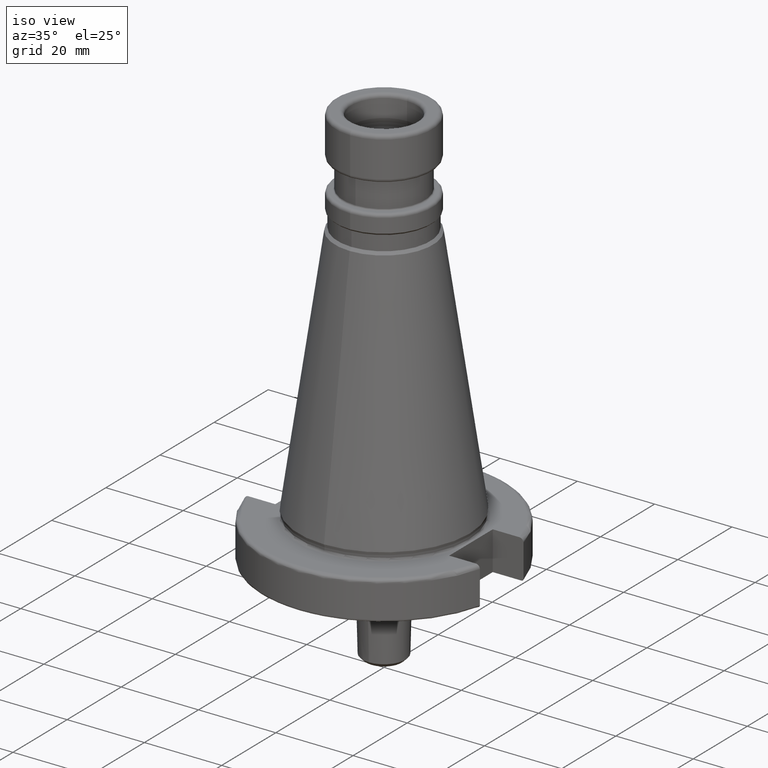
[diagram: clean part render]
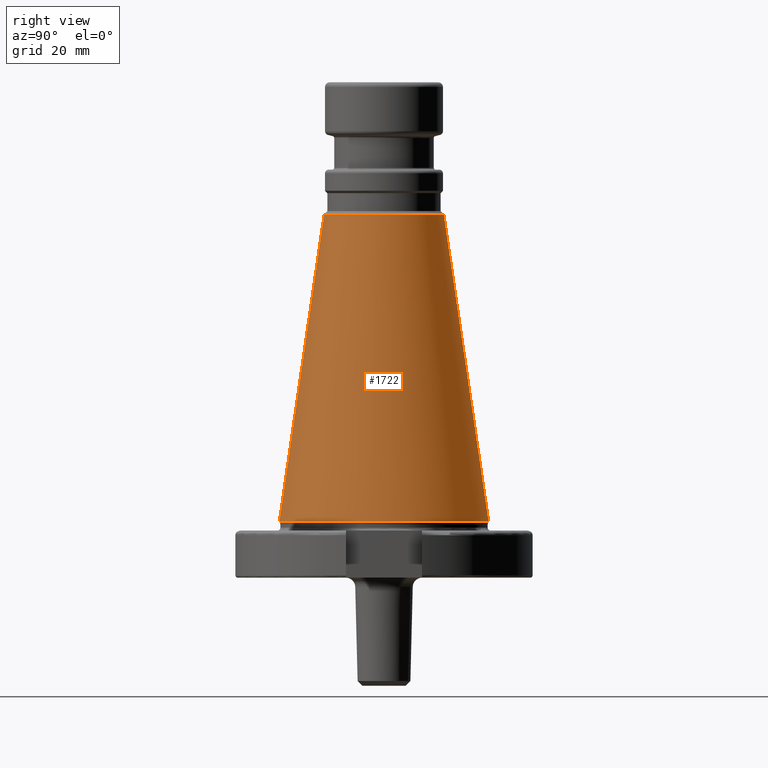
[diagram: tour spotlight — one face highlighted and labeled with its STEP entity id]
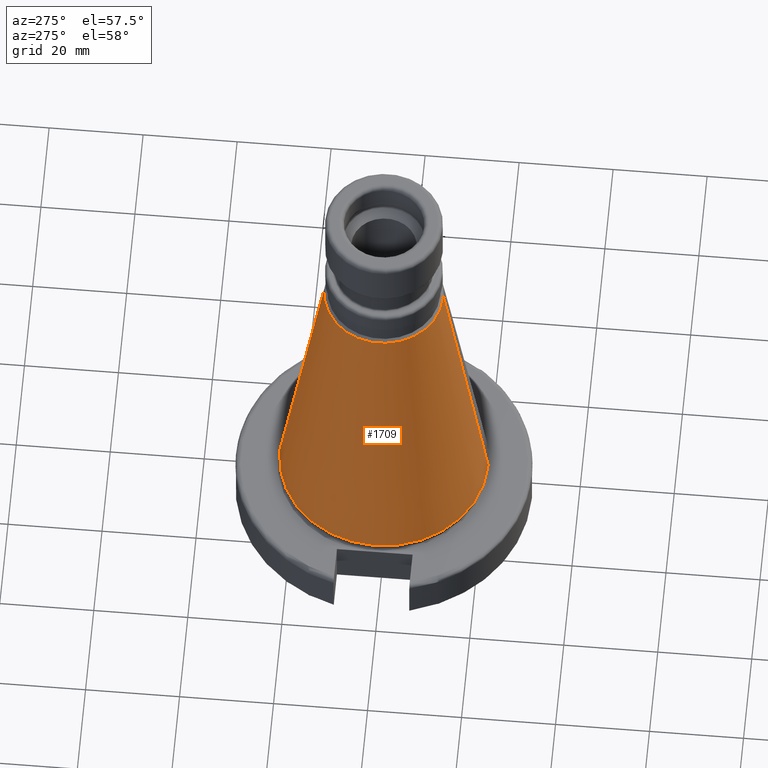
[diagram: tour spotlight — one face highlighted and labeled with its STEP entity id]
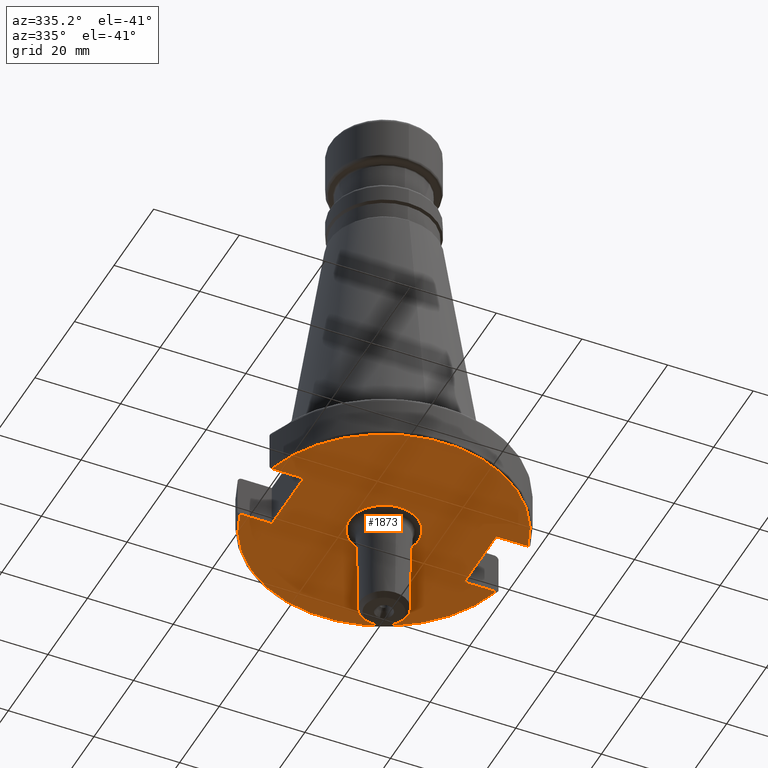
[diagram: tour spotlight — one face highlighted and labeled with its STEP entity id]
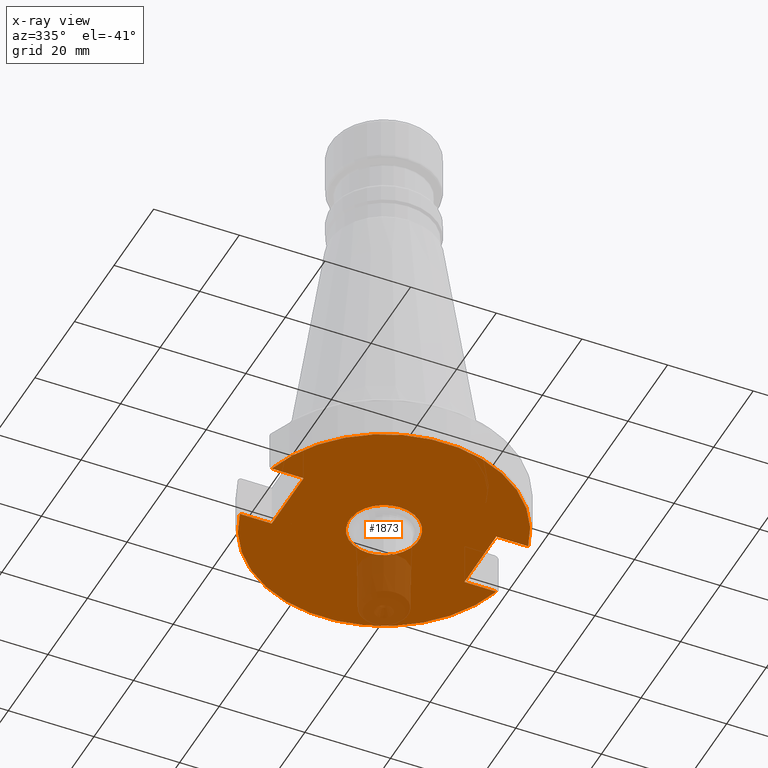
[diagram: x-ray of the same camera — body ghosted, this tour face saturated]
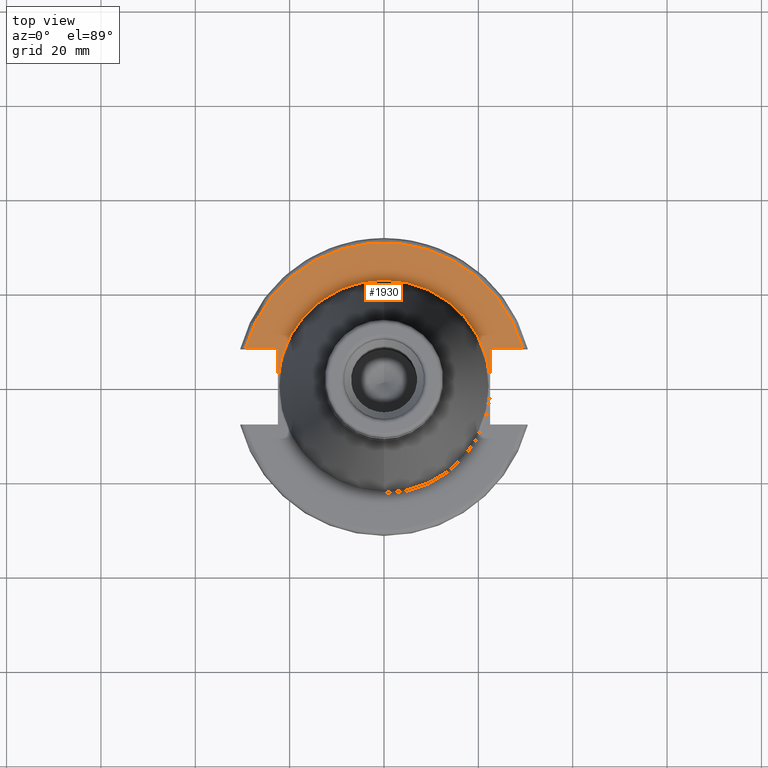
[diagram: tour spotlight — one face highlighted and labeled with its STEP entity id]
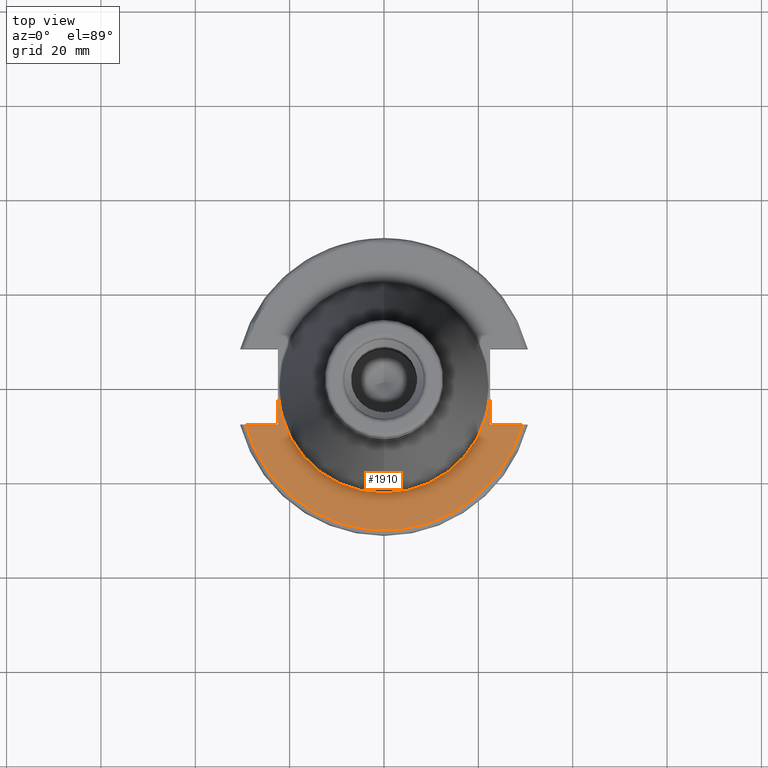
[diagram: tour spotlight — one face highlighted and labeled with its STEP entity id]
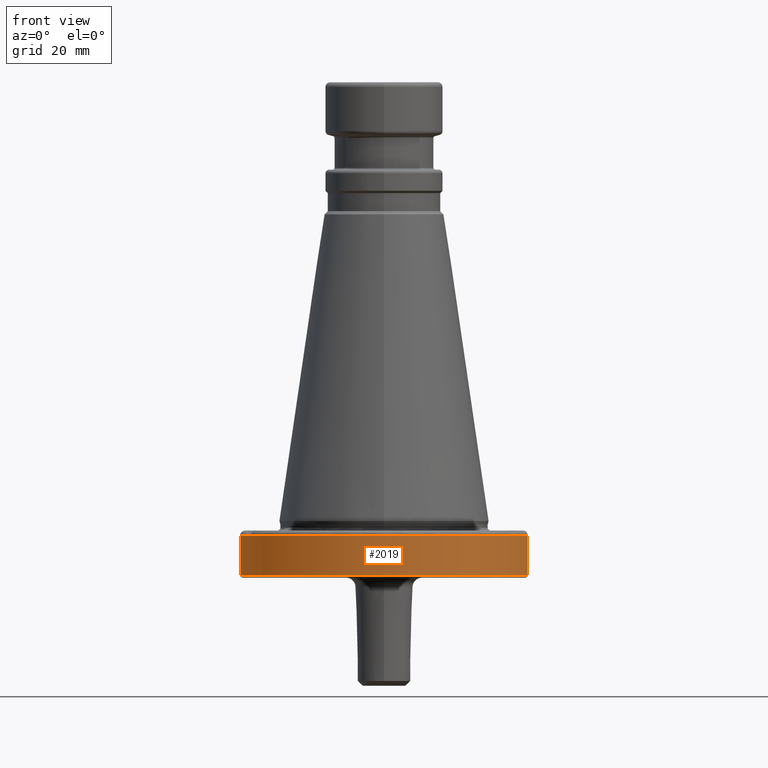
[diagram: tour spotlight — one face highlighted and labeled with its STEP entity id]
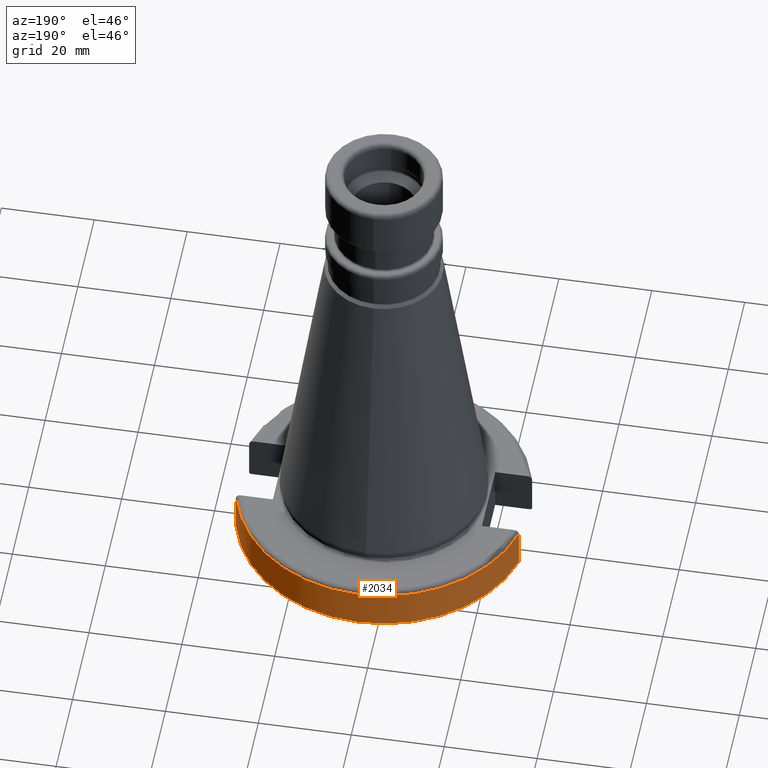
[diagram: tour spotlight — one face highlighted and labeled with its STEP entity id]
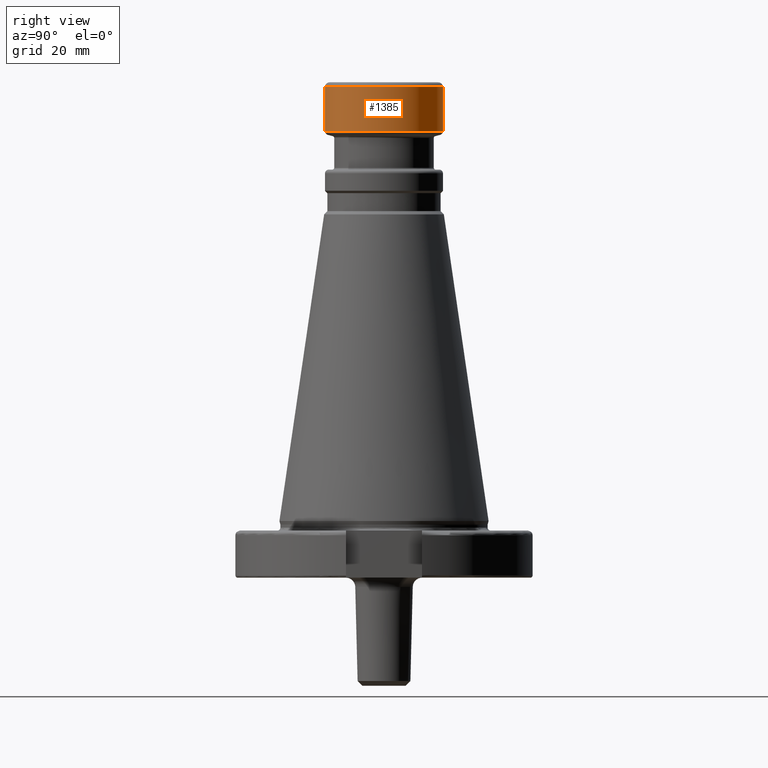
[diagram: tour spotlight — one face highlighted and labeled with its STEP entity id]
A machine part: a face-by-face anatomy tour. The part has 82 B-rep faces; the first image is the clean iso view, then the 8 largest visible faces are spotlighted one at a time (largest first), each with its STEP entity span.

Face 1 — right view, entity #1722. In plain terms, the highlighted conical surface has half-angle 8.297 deg.
Definition (entity closure, byte-faithful):
#397=CARTESIAN_POINT('',(0,0,77));
#398=DIRECTION('',(0,0,-1));
#399=DIRECTION('',(0,1,0));
#400=AXIS2_PLACEMENT_3D('',#397,#398,#399);
#415=DIRECTION('',(0,-0.1443061164152,0.9895330943254));
#416=VECTOR('',#415,65.68754534108);
#417=CARTESIAN_POINT('',(0,22.16666698729,12));
#418=LINE('',#417,#416);
#419=DIRECTION('',(0,0.1443061164152,0.9895330943254));
#420=VECTOR('',#419,65.68754534108);
#421=CARTESIAN_POINT('',(0,-22.16666698729,12));
#422=LINE('',#421,#420);
#428=CARTESIAN_POINT('',(0,0,12));
#429=DIRECTION('',(0,0,-1));
#430=DIRECTION('',(0,1,0));
#431=AXIS2_PLACEMENT_3D('',#428,#429,#430);
#889=CARTESIAN_POINT('',(0,22.16666698729,12));
#890=VERTEX_POINT('',#889);
#891=CARTESIAN_POINT('',(0,12.68755242227,77));
#892=VERTEX_POINT('',#891);
#937=CARTESIAN_POINT('',(0,-22.16666698729,12));
#938=VERTEX_POINT('',#937);
#939=CARTESIAN_POINT('',(0,-12.68755242227,77));
#940=VERTEX_POINT('',#939);
#1710=CARTESIAN_POINT('',(0,0,44.5));
#1711=DIRECTION('',(0,0,-1));
#1712=DIRECTION('',(0,-1,0));
#1713=AXIS2_PLACEMENT_3D('',#1710,#1711,#1712);
#1714=CONICAL_SURFACE('',#1713,17.42710970478,8.2971);
#1715=ORIENTED_EDGE('',*,*,#1700,.F.);
#1717=ORIENTED_EDGE('',*,*,#1716,.T.);
#1718=ORIENTED_EDGE('',*,*,#1703,.T.);
#1719=ORIENTED_EDGE('',*,*,#1674,.F.);
#1720=EDGE_LOOP('',(#1715,#1717,#1718,#1719));
#1721=FACE_OUTER_BOUND('',#1720,.F.);
#1722=ADVANCED_FACE('',(#1721),#1714,.T.);
#401=CIRCLE('',#400,12.68755242227);
#432=CIRCLE('',#431,22.16666698729);
#1674=EDGE_CURVE('',#892,#940,#401,.T.);
#1700=EDGE_CURVE('',#890,#892,#418,.T.);
#1703=EDGE_CURVE('',#938,#940,#422,.T.);
#1716=EDGE_CURVE('',#890,#938,#432,.T.);

Face 2 — auxiliary view, entity #1709. In plain terms, the highlighted conical surface has half-angle 8.297 deg.
Definition (entity closure, byte-faithful):
#410=CARTESIAN_POINT('',(0,0,77));
#411=DIRECTION('',(0,0,1));
#412=DIRECTION('',(0,1,0));
#413=AXIS2_PLACEMENT_3D('',#410,#411,#412);
#415=DIRECTION('',(0,-0.1443061164152,0.9895330943254));
#416=VECTOR('',#415,65.68754534108);
#417=CARTESIAN_POINT('',(0,22.16666698729,12));
#418=LINE('',#417,#416);
#419=DIRECTION('',(0,0.1443061164152,0.9895330943254));
#420=VECTOR('',#419,65.68754534108);
#421=CARTESIAN_POINT('',(0,-22.16666698729,12));
#422=LINE('',#421,#420);
#423=CARTESIAN_POINT('',(0,0,12));
#424=DIRECTION('',(0,0,1));
#425=DIRECTION('',(0,1,0));
#426=AXIS2_PLACEMENT_3D('',#423,#424,#425);
#889=CARTESIAN_POINT('',(0,22.16666698729,12));
#890=VERTEX_POINT('',#889);
#891=CARTESIAN_POINT('',(0,12.68755242227,77));
#892=VERTEX_POINT('',#891);
#937=CARTESIAN_POINT('',(0,-22.16666698729,12));
#938=VERTEX_POINT('',#937);
#939=CARTESIAN_POINT('',(0,-12.68755242227,77));
#940=VERTEX_POINT('',#939);
#1695=CARTESIAN_POINT('',(0,0,44.5));
#1696=DIRECTION('',(0,0,-1));
#1697=DIRECTION('',(0,-1,0));
#1698=AXIS2_PLACEMENT_3D('',#1695,#1696,#1697);
#1699=CONICAL_SURFACE('',#1698,17.42710970478,8.2971);
#1701=ORIENTED_EDGE('',*,*,#1700,.T.);
#1702=ORIENTED_EDGE('',*,*,#1690,.T.);
#1704=ORIENTED_EDGE('',*,*,#1703,.F.);
#1706=ORIENTED_EDGE('',*,*,#1705,.F.);
#1707=EDGE_LOOP('',(#1701,#1702,#1704,#1706));
#1708=FACE_OUTER_BOUND('',#1707,.F.);
#1709=ADVANCED_FACE('',(#1708),#1699,.T.);
#414=CIRCLE('',#413,12.68755242227);
#427=CIRCLE('',#426,22.16666698729);
#1690=EDGE_CURVE('',#892,#940,#414,.T.);
#1700=EDGE_CURVE('',#890,#892,#418,.T.);
#1703=EDGE_CURVE('',#938,#940,#422,.T.);
#1705=EDGE_CURVE('',#890,#938,#427,.T.);

Face 3 — auxiliary view, entity #1873. An x-ray twin of the same camera follows (body ghosted, this face saturated) — the face is partly hidden behind the body. In plain terms, the highlighted planar face has unit normal (0, 0, -1).
Definition (entity closure, byte-faithful):
#522=DIRECTION('',(1,0,0));
#523=VECTOR('',#522,7.436557918371);
#524=CARTESIAN_POINT('',(-29.93655791837,-8.05,0));
#525=LINE('',#524,#523);
#526=DIRECTION('',(-1,0,0));
#527=VECTOR('',#526,7.436557918371);
#528=CARTESIAN_POINT('',(29.93655791837,-8.05,0));
#529=LINE('',#528,#527);
#530=DIRECTION('',(0,-1,0));
#531=VECTOR('',#530,16.1);
#532=CARTESIAN_POINT('',(22.5,8.05,0));
#533=LINE('',#532,#531);
#534=DIRECTION('',(-1,0,0));
#535=VECTOR('',#534,7.436557918371);
#536=CARTESIAN_POINT('',(29.93655791837,8.05,0));
#537=LINE('',#536,#535);
#538=DIRECTION('',(1,0,0));
#539=VECTOR('',#538,7.436557918371);
#540=CARTESIAN_POINT('',(-29.93655791837,8.05,0));
#541=LINE('',#540,#539);
#542=DIRECTION('',(0,1,0));
#543=VECTOR('',#542,16.1);
#544=CARTESIAN_POINT('',(-22.5,-8.05,0));
#545=LINE('',#544,#543);
#546=CARTESIAN_POINT('',(0,0,0));
#547=DIRECTION('',(0,0,-1));
#548=DIRECTION('',(0,1,0));
#549=AXIS2_PLACEMENT_3D('',#546,#547,#548);
#551=CARTESIAN_POINT('',(0,0,0));
#552=DIRECTION('',(0,0,-1));
#553=DIRECTION('',(0,-1,0));
#554=AXIS2_PLACEMENT_3D('',#551,#552,#553);
#615=CARTESIAN_POINT('',(0,0,0));
#616=DIRECTION('',(0,0,-1));
#617=DIRECTION('',(0.9656954167217,-0.2596774193548,0));
#618=AXIS2_PLACEMENT_3D('',#615,#616,#617);
#663=CARTESIAN_POINT('',(0,0,0));
#664=DIRECTION('',(0,0,-1));
#665=DIRECTION('',(-0.9656954167217,0.2596774193548,0));
#666=AXIS2_PLACEMENT_3D('',#663,#664,#665);
#983=CARTESIAN_POINT('',(-29.93655791837,-8.05,0));
#984=CARTESIAN_POINT('',(-22.5,-8.05,0));
#985=VERTEX_POINT('',#983);
#986=VERTEX_POINT('',#984);
#987=CARTESIAN_POINT('',(-22.5,8.05,0));
#988=VERTEX_POINT('',#987);
#989=CARTESIAN_POINT('',(-29.93655791837,8.05,0));
#990=VERTEX_POINT('',#989);
#991=CARTESIAN_POINT('',(22.5,8.05,0));
#992=CARTESIAN_POINT('',(22.5,-8.05,0));
#993=VERTEX_POINT('',#991);
#994=VERTEX_POINT('',#992);
#995=CARTESIAN_POINT('',(29.93655791837,-8.05,0));
#996=VERTEX_POINT('',#995);
#997=CARTESIAN_POINT('',(29.93655791837,8.05,0));
#998=VERTEX_POINT('',#997);
#1073=CARTESIAN_POINT('',(0,8.092975443382,0));
#1074=CARTESIAN_POINT('',(0,-8.092975443382,0));
#1075=VERTEX_POINT('',#1073);
#1076=VERTEX_POINT('',#1074);
#1845=CARTESIAN_POINT('',(0,0,0));
#1846=DIRECTION('',(0,0,-1));
#1847=DIRECTION('',(0,-1,0));
#1848=AXIS2_PLACEMENT_3D('',#1845,#1846,#1847);
#1849=PLANE('',#1848);
#1851=ORIENTED_EDGE('',*,*,#1850,.F.);
#1853=ORIENTED_EDGE('',*,*,#1852,.F.);
#1855=ORIENTED_EDGE('',*,*,#1854,.T.);
#1857=ORIENTED_EDGE('',*,*,#1856,.F.);
#1859=ORIENTED_EDGE('',*,*,#1858,.F.);
#1861=ORIENTED_EDGE('',*,*,#1860,.F.);
#1863=ORIENTED_EDGE('',*,*,#1862,.T.);
#1864=ORIENTED_EDGE('',*,*,#1831,.F.);
#1865=EDGE_LOOP('',(#1851,#1853,#1855,#1857,#1859,#1861,#1863,#1864));
#1866=FACE_OUTER_BOUND('',#1865,.F.);
#1868=ORIENTED_EDGE('',*,*,#1867,.T.);
#1870=ORIENTED_EDGE('',*,*,#1869,.T.);
#1871=EDGE_LOOP('',(#1868,#1870));
#1872=FACE_BOUND('',#1871,.F.);
#1873=ADVANCED_FACE('',(#1866,#1872),#1849,.T.);
#550=CIRCLE('',#549,8.092975443382);
#555=CIRCLE('',#554,8.092975443382);
#619=CIRCLE('',#618,31);
#667=CIRCLE('',#666,31);
#1831=EDGE_CURVE('',#986,#988,#545,.T.);
#1850=EDGE_CURVE('',#985,#986,#525,.T.);
#1852=EDGE_CURVE('',#996,#985,#619,.T.);
#1854=EDGE_CURVE('',#996,#994,#529,.T.);
#1856=EDGE_CURVE('',#993,#994,#533,.T.);
#1858=EDGE_CURVE('',#998,#993,#537,.T.);
#1860=EDGE_CURVE('',#990,#998,#667,.T.);
#1862=EDGE_CURVE('',#990,#988,#541,.T.);
#1867=EDGE_CURVE('',#1075,#1076,#550,.T.);
#1869=EDGE_CURVE('',#1076,#1075,#555,.T.);

Face 4 — top view, entity #1930. In plain terms, the highlighted planar face has unit normal (0, 0, -1).
Definition (entity closure, byte-faithful):
#498=CARTESIAN_POINT('',(0,0,10));
#499=DIRECTION('',(0,0,1));
#500=DIRECTION('',(0,1,0));
#501=AXIS2_PLACEMENT_3D('',#498,#499,#500);
#572=DIRECTION('',(0,1,0));
#573=VECTOR('',#572,6.316662492374);
#574=CARTESIAN_POINT('',(-22.5,1.733337507626,10));
#575=LINE('',#574,#573);
#576=DIRECTION('',(1,0,0));
#577=VECTOR('',#576,6.918489084248);
#578=CARTESIAN_POINT('',(-29.41848908425,8.05,10));
#579=LINE('',#578,#577);
#580=DIRECTION('',(-1,0,0));
#581=VECTOR('',#580,6.918489084248);
#582=CARTESIAN_POINT('',(29.41848908425,8.05,10));
#583=LINE('',#582,#581);
#584=DIRECTION('',(0,-1,0));
#585=VECTOR('',#584,6.316662492374);
#586=CARTESIAN_POINT('',(22.5,8.05,10));
#587=LINE('',#586,#585);
#602=CARTESIAN_POINT('',(0,0,10));
#603=DIRECTION('',(0,0,-1));
#604=DIRECTION('',(0,1,0));
#605=AXIS2_PLACEMENT_3D('',#602,#603,#604);
#729=CARTESIAN_POINT('',(0,0,10));
#730=DIRECTION('',(0,0,1));
#731=DIRECTION('',(0.9645406257130,0.2639344262295,0));
#732=AXIS2_PLACEMENT_3D('',#729,#730,#731);
#881=CARTESIAN_POINT('',(0,22.56666698729,10));
#883=VERTEX_POINT('',#881);
#1013=CARTESIAN_POINT('',(-22.5,1.733337507626,10));
#1014=CARTESIAN_POINT('',(-22.5,8.05,10));
#1015=VERTEX_POINT('',#1013);
#1016=VERTEX_POINT('',#1014);
#1017=CARTESIAN_POINT('',(-29.41848908425,8.05,10));
#1018=VERTEX_POINT('',#1017);
#1019=CARTESIAN_POINT('',(22.5,8.05,10));
#1020=CARTESIAN_POINT('',(22.5,1.733337507626,10));
#1021=VERTEX_POINT('',#1019);
#1022=VERTEX_POINT('',#1020);
#1029=CARTESIAN_POINT('',(29.41848908425,8.05,10));
#1030=VERTEX_POINT('',#1029);
#1911=CARTESIAN_POINT('',(0,0,10));
#1912=DIRECTION('',(0,0,-1));
#1913=DIRECTION('',(0,-1,0));
#1914=AXIS2_PLACEMENT_3D('',#1911,#1912,#1913);
#1915=PLANE('',#1914);
#1916=ORIENTED_EDGE('',*,*,#1835,.T.);
#1918=ORIENTED_EDGE('',*,*,#1917,.F.);
#1920=ORIENTED_EDGE('',*,*,#1919,.F.);
#1922=ORIENTED_EDGE('',*,*,#1921,.T.);
#1924=ORIENTED_EDGE('',*,*,#1923,.T.);
#1926=ORIENTED_EDGE('',*,*,#1925,.F.);
#1927=ORIENTED_EDGE('',*,*,#1814,.T.);
#1928=EDGE_LOOP('',(#1916,#1918,#1920,#1922,#1924,#1926,#1927));
#1929=FACE_OUTER_BOUND('',#1928,.F.);
#1930=ADVANCED_FACE('',(#1929),#1915,.F.);
#502=CIRCLE('',#501,22.56666698729);
#606=CIRCLE('',#605,22.56666698729);
#733=CIRCLE('',#732,30.5);
#1814=EDGE_CURVE('',#883,#1015,#502,.T.);
#1835=EDGE_CURVE('',#1015,#1016,#575,.T.);
#1917=EDGE_CURVE('',#1018,#1016,#579,.T.);
#1919=EDGE_CURVE('',#1030,#1018,#733,.T.);
#1921=EDGE_CURVE('',#1030,#1021,#583,.T.);
#1923=EDGE_CURVE('',#1021,#1022,#587,.T.);
#1925=EDGE_CURVE('',#883,#1022,#606,.T.);

Face 5 — top view, entity #1910. In plain terms, the highlighted planar face has unit normal (0, 0, -1).
Definition (entity closure, byte-faithful):
#513=CARTESIAN_POINT('',(0,0,10));
#514=DIRECTION('',(0,0,1));
#515=DIRECTION('',(-0.9970457760852,-0.07680963735592,0));
#516=AXIS2_PLACEMENT_3D('',#513,#514,#515);
#556=DIRECTION('',(1,0,0));
#557=VECTOR('',#556,6.918489084248);
#558=CARTESIAN_POINT('',(-29.41848908425,-8.05,10));
#559=LINE('',#558,#557);
#560=DIRECTION('',(0,1,0));
#561=VECTOR('',#560,6.316662492374);
#562=CARTESIAN_POINT('',(-22.5,-8.05,10));
#563=LINE('',#562,#561);
#564=DIRECTION('',(0,-1,0));
#565=VECTOR('',#564,6.316662492374);
#566=CARTESIAN_POINT('',(22.5,-1.733337507626,10));
#567=LINE('',#566,#565);
#568=DIRECTION('',(-1,0,0));
#569=VECTOR('',#568,6.918489084248);
#570=CARTESIAN_POINT('',(29.41848908425,-8.05,10));
#571=LINE('',#570,#569);
#597=CARTESIAN_POINT('',(0,0,10));
#598=DIRECTION('',(0,0,-1));
#599=DIRECTION('',(0.9970457760852,-0.07680963735592,0));
#600=AXIS2_PLACEMENT_3D('',#597,#598,#599);
#712=CARTESIAN_POINT('',(0,0,10));
#713=DIRECTION('',(0,0,1));
#714=DIRECTION('',(-0.9645406257130,-0.2639344262295,0));
#715=AXIS2_PLACEMENT_3D('',#712,#713,#714);
#929=CARTESIAN_POINT('',(0,-22.56666698729,10));
#931=VERTEX_POINT('',#929);
#1007=CARTESIAN_POINT('',(-29.41848908425,-8.05,10));
#1008=CARTESIAN_POINT('',(-22.5,-8.05,10));
#1009=VERTEX_POINT('',#1007);
#1010=VERTEX_POINT('',#1008);
#1011=CARTESIAN_POINT('',(-22.5,-1.733337507626,10));
#1012=VERTEX_POINT('',#1011);
#1023=CARTESIAN_POINT('',(22.5,-1.733337507626,10));
#1024=CARTESIAN_POINT('',(22.5,-8.05,10));
#1025=VERTEX_POINT('',#1023);
#1026=VERTEX_POINT('',#1024);
#1027=CARTESIAN_POINT('',(29.41848908425,-8.05,10));
#1028=VERTEX_POINT('',#1027);
#1892=CARTESIAN_POINT('',(0,0,10));
#1893=DIRECTION('',(0,0,-1));
#1894=DIRECTION('',(0,-1,0));
#1895=AXIS2_PLACEMENT_3D('',#1892,#1893,#1894);
#1896=PLANE('',#1895);
#1897=ORIENTED_EDGE('',*,*,#1881,.T.);
#1898=ORIENTED_EDGE('',*,*,#1838,.T.);
#1899=ORIENTED_EDGE('',*,*,#1821,.T.);
#1901=ORIENTED_EDGE('',*,*,#1900,.F.);
#1903=ORIENTED_EDGE('',*,*,#1902,.T.);
#1905=ORIENTED_EDGE('',*,*,#1904,.F.);
#1907=ORIENTED_EDGE('',*,*,#1906,.F.);
#1908=EDGE_LOOP('',(#1897,#1898,#1899,#1901,#1903,#1905,#1907));
#1909=FACE_OUTER_BOUND('',#1908,.F.);
#1910=ADVANCED_FACE('',(#1909),#1896,.F.);
#517=CIRCLE('',#516,22.56666698729);
#601=CIRCLE('',#600,22.56666698729);
#716=CIRCLE('',#715,30.5);
#1821=EDGE_CURVE('',#1012,#931,#517,.T.);
#1838=EDGE_CURVE('',#1010,#1012,#563,.T.);
#1881=EDGE_CURVE('',#1009,#1010,#559,.T.);
#1900=EDGE_CURVE('',#1025,#931,#601,.T.);
#1902=EDGE_CURVE('',#1025,#1026,#567,.T.);
#1904=EDGE_CURVE('',#1028,#1026,#571,.T.);
#1906=EDGE_CURVE('',#1009,#1028,#716,.T.);

Face 6 — front view, entity #2019. In plain terms, the highlighted cylindrical surface (partial cylindrical patch) has radius 31.5 mm, axis along (0, 0, -1).
Definition (entity closure, byte-faithful):
#631=CARTESIAN_POINT('',(0,0,0.5));
#632=DIRECTION('',(0,0,1));
#633=DIRECTION('',(-0.9667943721520,-0.2555555555556,0));
#634=AXIS2_PLACEMENT_3D('',#631,#632,#633);
#679=DIRECTION('',(0,0,-1));
#680=VECTOR('',#679,8.5);
#681=CARTESIAN_POINT('',(-30.45402272279,-8.05,9));
#682=LINE('',#681,#680);
#683=DIRECTION('',(0,0,-1));
#684=VECTOR('',#683,8.5);
#685=CARTESIAN_POINT('',(30.45402272279,-8.05,9));
#686=LINE('',#685,#684);
#695=CARTESIAN_POINT('',(0,0,9));
#696=DIRECTION('',(0,0,-1));
#697=DIRECTION('',(0.9667943721520,-0.2555555555556,0));
#698=AXIS2_PLACEMENT_3D('',#695,#696,#697);
#999=CARTESIAN_POINT('',(30.45402272279,-8.05,9));
#1000=CARTESIAN_POINT('',(30.45402272279,-8.05,0.5));
#1001=VERTEX_POINT('',#999);
#1002=VERTEX_POINT('',#1000);
#1031=CARTESIAN_POINT('',(-30.45402272279,-8.05,9));
#1032=CARTESIAN_POINT('',(-30.45402272279,-8.05,0.5));
#1033=VERTEX_POINT('',#1031);
#1034=VERTEX_POINT('',#1032);
#2007=CARTESIAN_POINT('',(0,0,110.25));
#2008=DIRECTION('',(0,0,-1));
#2009=DIRECTION('',(0,-1,0));
#2010=AXIS2_PLACEMENT_3D('',#2007,#2008,#2009);
#2011=CYLINDRICAL_SURFACE('',#2010,31.5);
#2012=ORIENTED_EDGE('',*,*,#1986,.F.);
#2013=ORIENTED_EDGE('',*,*,#1885,.F.);
#2015=ORIENTED_EDGE('',*,*,#2014,.F.);
#2016=ORIENTED_EDGE('',*,*,#1970,.T.);
#2017=EDGE_LOOP('',(#2012,#2013,#2015,#2016));
#2018=FACE_OUTER_BOUND('',#2017,.F.);
#2019=ADVANCED_FACE('',(#2018),#2011,.T.);
#635=CIRCLE('',#634,31.5);
#699=CIRCLE('',#698,31.5);
#1885=EDGE_CURVE('',#1033,#1034,#682,.T.);
#1970=EDGE_CURVE('',#1001,#1002,#686,.T.);
#1986=EDGE_CURVE('',#1034,#1002,#635,.T.);
#2014=EDGE_CURVE('',#1001,#1033,#699,.T.);

Face 7 — auxiliary view, entity #2034. In plain terms, the highlighted cylindrical surface (partial cylindrical patch) has radius 31.5 mm, axis along (0, 0, -1).
Definition (entity closure, byte-faithful):
#647=CARTESIAN_POINT('',(0,0,0.5));
#648=DIRECTION('',(0,0,1));
#649=DIRECTION('',(0.9667943721520,0.2555555555556,0));
#650=AXIS2_PLACEMENT_3D('',#647,#648,#649);
#687=DIRECTION('',(0,0,-1));
#688=VECTOR('',#687,8.5);
#689=CARTESIAN_POINT('',(-30.45402272279,8.05,9));
#690=LINE('',#689,#688);
#691=DIRECTION('',(0,0,-1));
#692=VECTOR('',#691,8.5);
#693=CARTESIAN_POINT('',(30.45402272279,8.05,9));
#694=LINE('',#693,#692);
#746=CARTESIAN_POINT('',(0,0,9));
#747=DIRECTION('',(0,0,-1));
#748=DIRECTION('',(-0.9667943721520,0.2555555555556,0));
#749=AXIS2_PLACEMENT_3D('',#746,#747,#748);
#1003=CARTESIAN_POINT('',(30.45402272279,8.05,9));
#1004=CARTESIAN_POINT('',(30.45402272279,8.05,0.5));
#1005=VERTEX_POINT('',#1003);
#1006=VERTEX_POINT('',#1004);
#1035=CARTESIAN_POINT('',(-30.45402272279,8.05,9));
#1036=CARTESIAN_POINT('',(-30.45402272279,8.05,0.5));
#1037=VERTEX_POINT('',#1035);
#1038=VERTEX_POINT('',#1036);
#2020=CARTESIAN_POINT('',(0,0,110.25));
#2021=DIRECTION('',(0,0,-1));
#2022=DIRECTION('',(0,-1,0));
#2023=AXIS2_PLACEMENT_3D('',#2020,#2021,#2022);
#2024=CYLINDRICAL_SURFACE('',#2023,31.5);
#2026=ORIENTED_EDGE('',*,*,#2025,.F.);
#2028=ORIENTED_EDGE('',*,*,#2027,.T.);
#2029=ORIENTED_EDGE('',*,*,#1997,.F.);
#2031=ORIENTED_EDGE('',*,*,#2030,.F.);
#2032=EDGE_LOOP('',(#2026,#2028,#2029,#2031));
#2033=FACE_OUTER_BOUND('',#2032,.F.);
#2034=ADVANCED_FACE('',(#2033),#2024,.T.);
#651=CIRCLE('',#650,31.5);
#750=CIRCLE('',#749,31.5);
#1997=EDGE_CURVE('',#1006,#1038,#651,.T.);
#2025=EDGE_CURVE('',#1037,#1005,#750,.T.);
#2027=EDGE_CURVE('',#1037,#1038,#690,.T.);
#2030=EDGE_CURVE('',#1005,#1006,#694,.T.);

Face 8 — right view, entity #1385. In plain terms, the highlighted cylindrical surface (partial cylindrical patch) has radius 12.5 mm, axis along (0, 0, -1).
Definition (entity closure, byte-faithful):
#189=CARTESIAN_POINT('',(0,0,104));
#190=DIRECTION('',(0,0,1));
#191=DIRECTION('',(0,-1,0));
#192=AXIS2_PLACEMENT_3D('',#189,#190,#191);
#194=CARTESIAN_POINT('',(0,0,94.63636251562));
#195=DIRECTION('',(0,0,-1));
#196=DIRECTION('',(0,1,0));
#197=AXIS2_PLACEMENT_3D('',#194,#195,#196);
#204=DIRECTION('',(-0.0000000000002114902063601,0,1));
#205=VECTOR('',#204,9.363637484376);
#206=CARTESIAN_POINT('',(0,-12.5,94.63636251562));
#207=LINE('',#206,#205);
#213=DIRECTION('',(0.0000000000002114908338869,0,1));
#214=VECTOR('',#213,9.363637484376);
#215=CARTESIAN_POINT('',(0,12.5,94.63636251562));
#216=LINE('',#215,#214);
#913=CARTESIAN_POINT('',(0,12.5,94.63636251562));
#914=VERTEX_POINT('',#913);
#961=CARTESIAN_POINT('',(0,-12.5,94.63636251562));
#962=VERTEX_POINT('',#961);
#1043=CARTESIAN_POINT('',(0,12.5,104));
#1044=CARTESIAN_POINT('',(0,-12.5,104));
#1045=VERTEX_POINT('',#1043);
#1046=VERTEX_POINT('',#1044);
#1371=CARTESIAN_POINT('',(0,0,110.25));
#1372=DIRECTION('',(0,0,-1));
#1373=DIRECTION('',(0,-1,0));
#1374=AXIS2_PLACEMENT_3D('',#1371,#1372,#1373);
#1375=CYLINDRICAL_SURFACE('',#1374,12.5);
#1376=ORIENTED_EDGE('',*,*,#1365,.T.);
#1378=ORIENTED_EDGE('',*,*,#1377,.F.);
#1380=ORIENTED_EDGE('',*,*,#1379,.T.);
#1382=ORIENTED_EDGE('',*,*,#1381,.T.);
#1383=EDGE_LOOP('',(#1376,#1378,#1380,#1382));
#1384=FACE_OUTER_BOUND('',#1383,.F.);
#1385=ADVANCED_FACE('',(#1384),#1375,.T.);
#193=CIRCLE('',#192,12.5);
#198=CIRCLE('',#197,12.5);
#1365=EDGE_CURVE('',#1046,#1045,#193,.T.);
#1377=EDGE_CURVE('',#914,#1045,#216,.T.);
#1379=EDGE_CURVE('',#914,#962,#198,.T.);
#1381=EDGE_CURVE('',#962,#1046,#207,.T.);